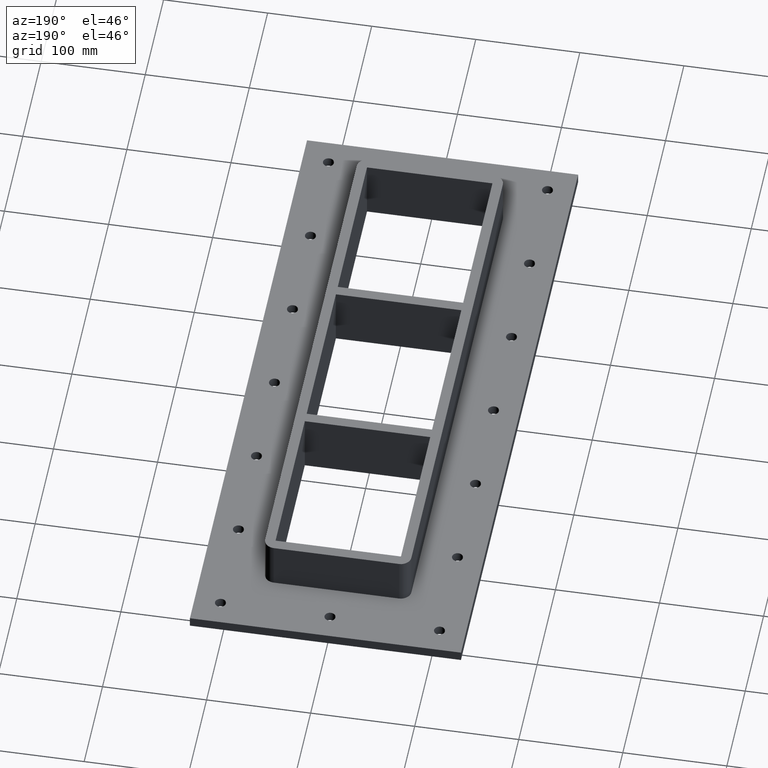
[diagram: clean part render]
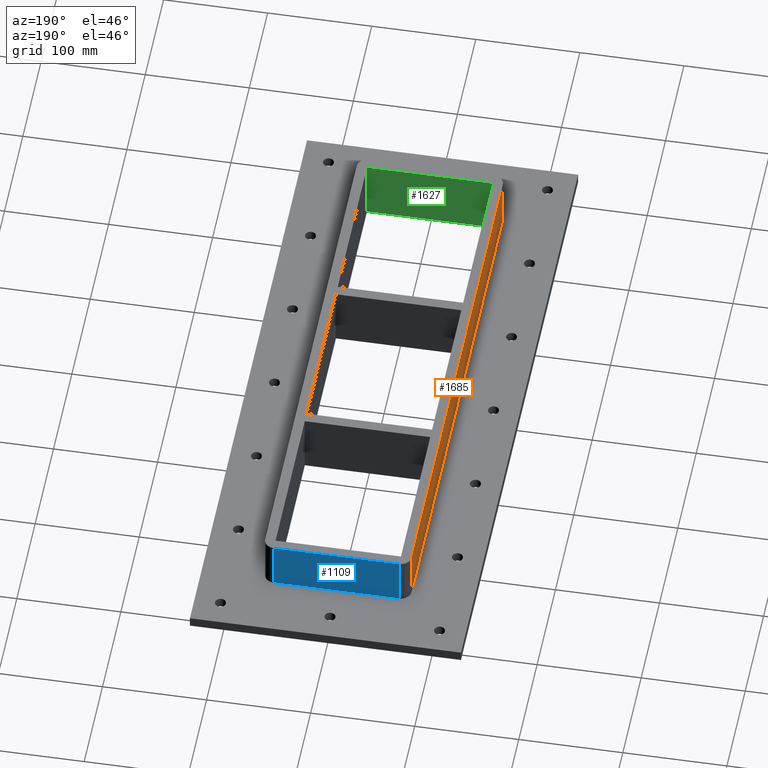
[diagram: same view with three faces highlighted in distinct colors, each labeled with its STEP entity id]
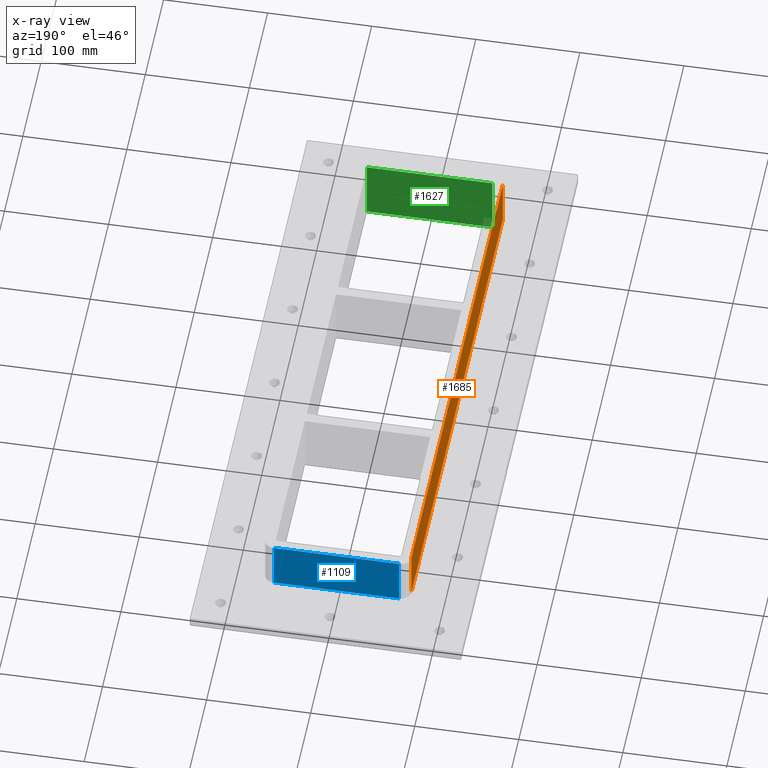
[diagram: x-ray of the same camera — body ghosted, the three highlighted faces saturated]
A machine part, auxiliary view with three faces highlighted in distinct colors.
The next image is the same camera in x-ray (body ghosted, the three faces saturated) — at least one of them is partly hidden behind the body in this view.
Their STEP definitions:

[orange] entity #1685 — the highlighted planar face has unit normal (-1, 0, 0).
#735=CARTESIAN_POINT('',(-70.249999999999986,-249.25000000000006,-17.0));
#736=VERTEX_POINT('',#735);
#744=CARTESIAN_POINT('',(-70.249999999999986,249.25,-17.0));
#745=VERTEX_POINT('',#744);
#746=CARTESIAN_POINT('',(-70.250000000000114,249.25,-16.999999999999996));
#747=DIRECTION('',(0.0,-1.0,0.0));
#748=VECTOR('',#747,498.50000000000006);
#749=LINE('',#746,#748);
#750=EDGE_CURVE('',#745,#736,#749,.T.);
#1304=CARTESIAN_POINT('',(-70.249999999999915,-249.24999999999983,30.0));
#1305=VERTEX_POINT('',#1304);
#1313=CARTESIAN_POINT('',(-70.249999999999915,-249.24999999999983,30.0));
#1314=DIRECTION('',(0.0,0.0,-1.0));
#1315=VECTOR('',#1314,47.0);
#1316=LINE('',#1313,#1315);
#1317=EDGE_CURVE('',#1305,#736,#1316,.T.);
#1328=CARTESIAN_POINT('',(-70.250000000000128,249.25000000000011,30.0));
#1329=VERTEX_POINT('',#1328);
#1330=CARTESIAN_POINT('',(-70.250000000000128,249.25000000000011,-17.0));
#1331=DIRECTION('',(0.0,0.0,1.0));
#1332=VECTOR('',#1331,47.0);
#1333=LINE('',#1330,#1332);
#1334=EDGE_CURVE('',#745,#1329,#1333,.T.);
#1669=CARTESIAN_POINT('',(-70.250000000000128,259.25000000000011,0.0));
#1670=DIRECTION('',(-1.0,0.0,0.0));
#1671=DIRECTION('',(0.0,-1.0,0.0));
#1672=AXIS2_PLACEMENT_3D('',#1669,#1670,#1671);
#1673=PLANE('',#1672);
#1674=ORIENTED_EDGE('',*,*,#750,.T.);
#1675=ORIENTED_EDGE('',*,*,#1317,.F.);
#1676=CARTESIAN_POINT('',(-70.250000000000128,249.25000000000011,30.0));
#1677=DIRECTION('',(0.0,-1.0,0.0));
#1678=VECTOR('',#1677,498.49999999999994);
#1679=LINE('',#1676,#1678);
#1680=EDGE_CURVE('',#1329,#1305,#1679,.T.);
#1681=ORIENTED_EDGE('',*,*,#1680,.F.);
#1682=ORIENTED_EDGE('',*,*,#1334,.F.);
#1683=EDGE_LOOP('',(#1674,#1675,#1681,#1682));
#1684=FACE_OUTER_BOUND('',#1683,.T.);
#1685=ADVANCED_FACE('',(#1684),#1673,.T.);

[blue] entity #1109 — the highlighted planar face has unit normal (0, 1, 0).
#701=CARTESIAN_POINT('',(60.249999999999915,259.25000000000006,-17.0));
#702=VERTEX_POINT('',#701);
#752=CARTESIAN_POINT('',(-60.250000000000057,259.25000000000006,-17.0));
#753=VERTEX_POINT('',#752);
#761=CARTESIAN_POINT('',(60.249999999999915,259.25000000000011,-16.999999999999996));
#762=DIRECTION('',(-1.0,0.0,0.0));
#763=VECTOR('',#762,120.49999999999997);
#764=LINE('',#761,#763);
#765=EDGE_CURVE('',#702,#753,#764,.T.);
#1043=CARTESIAN_POINT('',(60.249999999999915,259.25000000000011,30.0));
#1044=VERTEX_POINT('',#1043);
#1045=CARTESIAN_POINT('',(60.249999999999915,259.25000000000011,-17.0));
#1046=DIRECTION('',(0.0,0.0,1.0));
#1047=VECTOR('',#1046,47.0);
#1048=LINE('',#1045,#1047);
#1049=EDGE_CURVE('',#702,#1044,#1048,.T.);
#1086=CARTESIAN_POINT('',(70.249999999999915,259.25000000000011,0.0));
#1087=DIRECTION('',(0.0,1.0,0.0));
#1088=DIRECTION('',(-1.0,0.0,0.0));
#1089=AXIS2_PLACEMENT_3D('',#1086,#1087,#1088);
#1090=PLANE('',#1089);
#1091=ORIENTED_EDGE('',*,*,#765,.T.);
#1092=CARTESIAN_POINT('',(-60.250000000000128,259.25000000000011,30.0));
#1093=VERTEX_POINT('',#1092);
#1094=CARTESIAN_POINT('',(-60.250000000000128,259.25000000000011,30.0));
#1095=DIRECTION('',(0.0,0.0,-1.0));
#1096=VECTOR('',#1095,47.0);
#1097=LINE('',#1094,#1096);
#1098=EDGE_CURVE('',#1093,#753,#1097,.T.);
#1099=ORIENTED_EDGE('',*,*,#1098,.F.);
#1100=CARTESIAN_POINT('',(60.249999999999915,259.25000000000011,30.0));
#1101=DIRECTION('',(-1.0,0.0,0.0));
#1102=VECTOR('',#1101,120.50000000000006);
#1103=LINE('',#1100,#1102);
#1104=EDGE_CURVE('',#1044,#1093,#1103,.T.);
#1105=ORIENTED_EDGE('',*,*,#1104,.F.);
#1106=ORIENTED_EDGE('',*,*,#1049,.F.);
#1107=EDGE_LOOP('',(#1091,#1099,#1105,#1106));
#1108=FACE_OUTER_BOUND('',#1107,.T.);
#1109=ADVANCED_FACE('',(#1108),#1090,.T.);

[green] entity #1627 — the highlighted planar face has unit normal (0, -1, 0).
#1238=CARTESIAN_POINT('',(60.250000000000057,-249.24999999999986,-30.0));
#1239=VERTEX_POINT('',#1238);
#1256=CARTESIAN_POINT('',(-60.249999999999986,-249.25000000000011,-30.0));
#1257=VERTEX_POINT('',#1256);
#1264=CARTESIAN_POINT('',(-60.249999999999986,-249.25000000000014,-30.0));
#1265=DIRECTION('',(1.0,0.0,0.0));
#1266=VECTOR('',#1265,120.50000000000004);
#1267=LINE('',#1264,#1266);
#1268=EDGE_CURVE('',#1257,#1239,#1267,.T.);
#1587=CARTESIAN_POINT('',(-60.249999999999986,-249.25000000000011,30.0));
#1588=VERTEX_POINT('',#1587);
#1595=CARTESIAN_POINT('',(-60.249999999999986,-249.25000000000011,30.0));
#1596=DIRECTION('',(0.0,0.0,-1.0));
#1597=VECTOR('',#1596,60.0);
#1598=LINE('',#1595,#1597);
#1599=EDGE_CURVE('',#1588,#1257,#1598,.T.);
#1604=CARTESIAN_POINT('',(60.250000000000057,-249.24999999999986,30.0));
#1605=DIRECTION('',(0.0,-1.0,0.0));
#1606=DIRECTION('',(-1.0,0.0,0.0));
#1607=AXIS2_PLACEMENT_3D('',#1604,#1605,#1606);
#1608=PLANE('',#1607);
#1609=ORIENTED_EDGE('',*,*,#1268,.F.);
#1610=ORIENTED_EDGE('',*,*,#1599,.F.);
#1611=CARTESIAN_POINT('',(60.250000000000057,-249.24999999999986,30.0));
#1612=VERTEX_POINT('',#1611);
#1613=CARTESIAN_POINT('',(60.250000000000057,-249.24999999999989,30.0));
#1614=DIRECTION('',(-1.0,0.0,0.0));
#1615=VECTOR('',#1614,120.50000000000004);
#1616=LINE('',#1613,#1615);
#1617=EDGE_CURVE('',#1612,#1588,#1616,.T.);
#1618=ORIENTED_EDGE('',*,*,#1617,.F.);
#1619=CARTESIAN_POINT('',(60.250000000000057,-249.24999999999986,30.0));
#1620=DIRECTION('',(0.0,0.0,-1.0));
#1621=VECTOR('',#1620,60.0);
#1622=LINE('',#1619,#1621);
#1623=EDGE_CURVE('',#1612,#1239,#1622,.T.);
#1624=ORIENTED_EDGE('',*,*,#1623,.T.);
#1625=EDGE_LOOP('',(#1609,#1610,#1618,#1624));
#1626=FACE_OUTER_BOUND('',#1625,.T.);
#1627=ADVANCED_FACE('',(#1626),#1608,.F.);